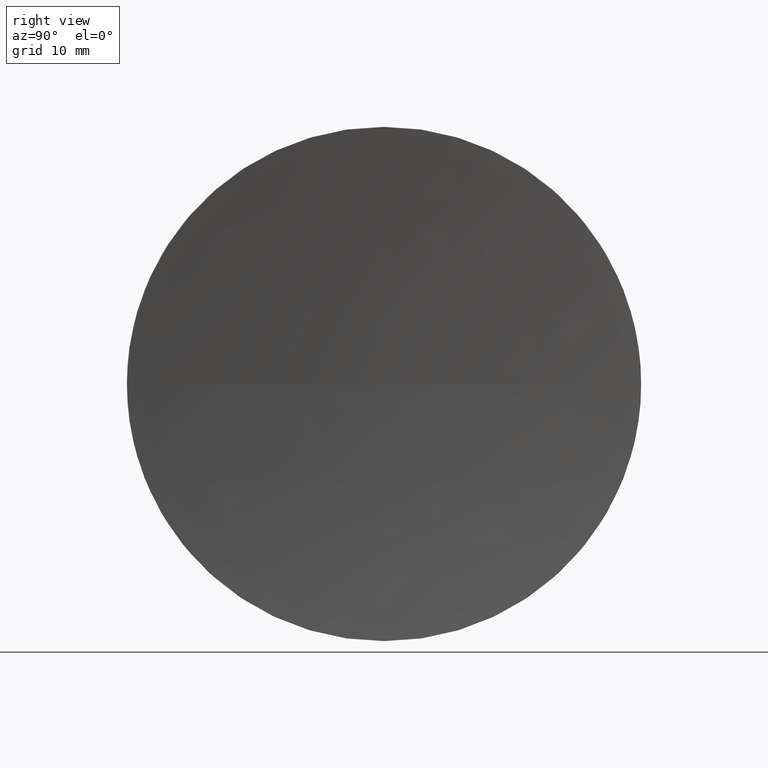
[diagram: clean part render]
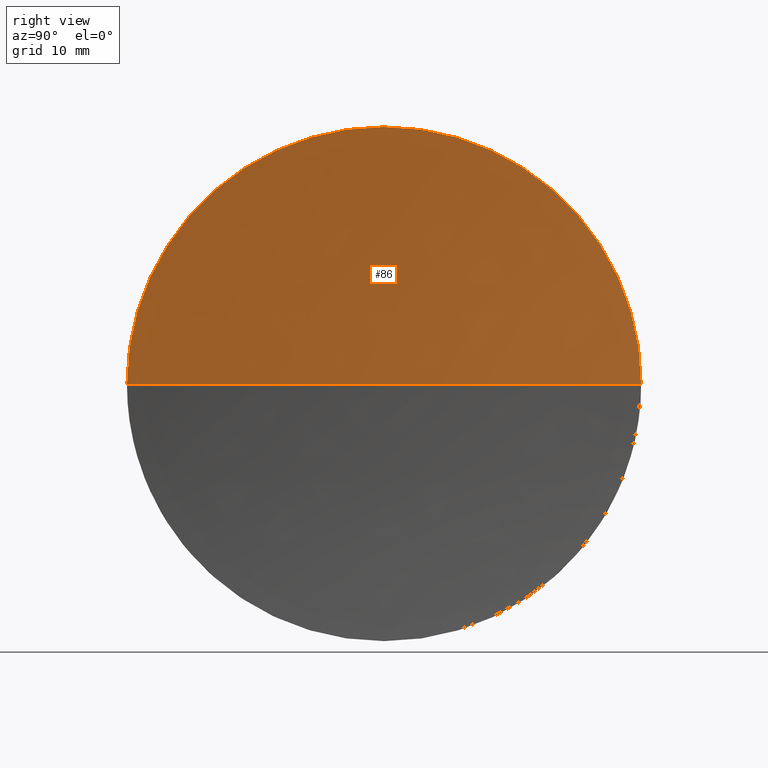
[diagram: same view with one face highlighted and labeled with its STEP entity id]
A machine part, right view. The second image highlights one B-rep face of the part: STEP entity #86.
In plain terms, the highlighted spherical surface has radius 300 mm.
Its self-contained STEP definition (entity closure, byte-faithful):
#2 = AXIS2_PLACEMENT_3D ( 'NONE', #142, #29, #145 ) ;
#8 = DIRECTION ( 'NONE',  ( 0.0000000000000000000, 0.0000000000000000000, 1.000000000000000000 ) ) ;
#12 = DIRECTION ( 'NONE',  ( 0.0000000000000000000, 1.000000000000000000, 0.0000000000000000000 ) ) ;
#18 = AXIS2_PLACEMENT_3D ( 'NONE', #27, #92, #8 ) ;
#20 = SPHERICAL_SURFACE ( 'NONE', #70, 300.0000000000000600 ) ;
#27 = CARTESIAN_POINT ( 'NONE',  ( 241.5525897013507700, 138.7560422467448700, 0.0000000000000000000 ) ) ;
#28 = ORIENTED_EDGE ( 'NONE', *, *, #111, .F. ) ;
#29 = DIRECTION ( 'NONE',  ( -1.000000000000000000, -0.0000000000000000000, -0.0000000000000000000 ) ) ;
#30 = ORIENTED_EDGE ( 'NONE', *, *, #100, .F. ) ;
#32 = DIRECTION ( 'NONE',  ( 0.0000000000000000000, 1.224646799147353200E-016, -1.000000000000000000 ) ) ;
#37 = AXIS2_PLACEMENT_3D ( 'NONE', #77, #32, #97 ) ;
#41 = ORIENTED_EDGE ( 'NONE', *, *, #53, .F. ) ;
#47 = FACE_OUTER_BOUND ( 'NONE', #168, .T. ) ;
#53 = EDGE_CURVE ( 'NONE', #116, #88, #58, .T. ) ;
#58 = CIRCLE ( 'NONE', #2, 37.50000000000000700 ) ;
#70 = AXIS2_PLACEMENT_3D ( 'NONE', #93, #179, #12 ) ;
#73 = VERTEX_POINT ( 'NONE', #105 ) ;
#77 = CARTESIAN_POINT ( 'NONE',  ( 539.1996121961171900, 138.7560422467447000, 0.0000000000000000000 ) ) ;
#86 = ADVANCED_FACE ( 'NONE', ( #47 ), #20, .F. ) ;
#88 = VERTEX_POINT ( 'NONE', #144 ) ;
#92 = DIRECTION ( 'NONE',  ( -1.000000000000000000, -0.0000000000000000000, -0.0000000000000000000 ) ) ;
#93 = CARTESIAN_POINT ( 'NONE',  ( 539.1996121961171900, 138.7560422467447000, 0.0000000000000000000 ) ) ;
#94 = AXIS2_PLACEMENT_3D ( 'NONE', #178, #106, #164 ) ;
#97 = DIRECTION ( 'NONE',  ( 0.0000000000000000000, 1.000000000000000000, 1.224646799147353200E-016 ) ) ;
#100 = EDGE_CURVE ( 'NONE', #88, #73, #171, .T. ) ;
#105 = CARTESIAN_POINT ( 'NONE',  ( 241.5525897013507400, 176.2560422467447800, 0.0000000000000000000 ) ) ;
#106 = DIRECTION ( 'NONE',  ( 0.0000000000000000000, 0.0000000000000000000, 1.000000000000000000 ) ) ;
#111 = EDGE_CURVE ( 'NONE', #73, #122, #135, .T. ) ;
#116 = VERTEX_POINT ( 'NONE', #180 ) ;
#122 = VERTEX_POINT ( 'NONE', #146 ) ;
#129 = EDGE_CURVE ( 'NONE', #116, #122, #137, .T. ) ;
#135 = CIRCLE ( 'NONE', #94, 300.0000000000000600 ) ;
#137 = CIRCLE ( 'NONE', #37, 300.0000000000000600 ) ;
#142 = CARTESIAN_POINT ( 'NONE',  ( 241.5525897013507700, 138.7560422467448700, 0.0000000000000000000 ) ) ;
#144 = CARTESIAN_POINT ( 'NONE',  ( 241.5525897013507700, 138.7560422467448700, 37.50000000000000700 ) ) ;
#145 = DIRECTION ( 'NONE',  ( 0.0000000000000000000, 0.0000000000000000000, 1.000000000000000000 ) ) ;
#146 = CARTESIAN_POINT ( 'NONE',  ( 239.1996121961171900, 138.7560422467447300, 0.0000000000000000000 ) ) ;
#151 = ORIENTED_EDGE ( 'NONE', *, *, #129, .T. ) ;
#164 = DIRECTION ( 'NONE',  ( 1.000000000000000000, 0.0000000000000000000, 0.0000000000000000000 ) ) ;
#168 = EDGE_LOOP ( 'NONE', ( #41, #151, #28, #30 ) ) ;
#171 = CIRCLE ( 'NONE', #18, 37.50000000000000700 ) ;
#178 = CARTESIAN_POINT ( 'NONE',  ( 539.1996121961171900, 138.7560422467447000, 0.0000000000000000000 ) ) ;
#179 = DIRECTION ( 'NONE',  ( 0.0000000000000000000, 0.0000000000000000000, -1.000000000000000000 ) ) ;
#180 = CARTESIAN_POINT ( 'NONE',  ( 241.5525897013507400, 101.2560422467448000, -4.592425496802562500E-015 ) ) ;